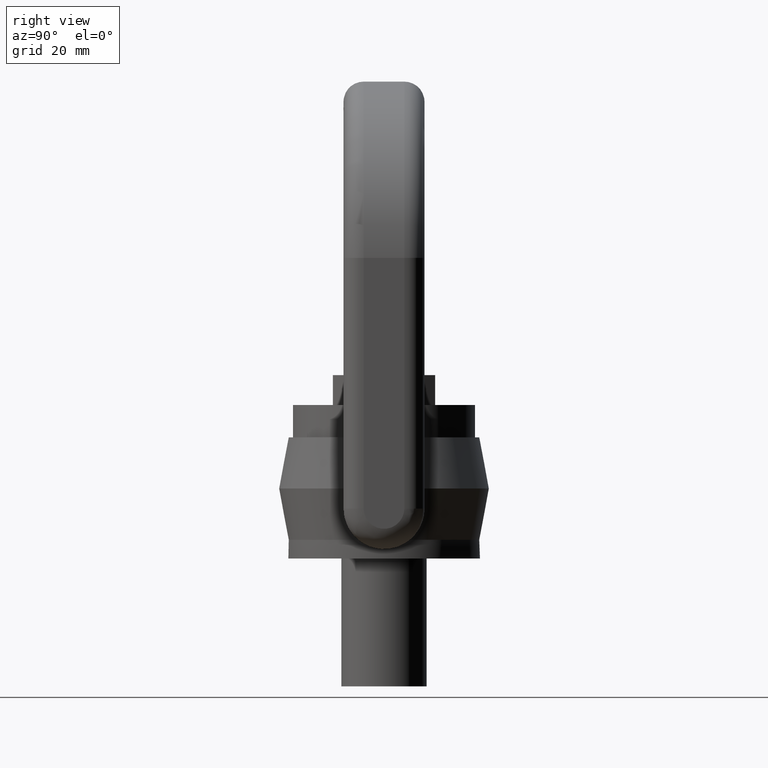
[diagram: clean part render]
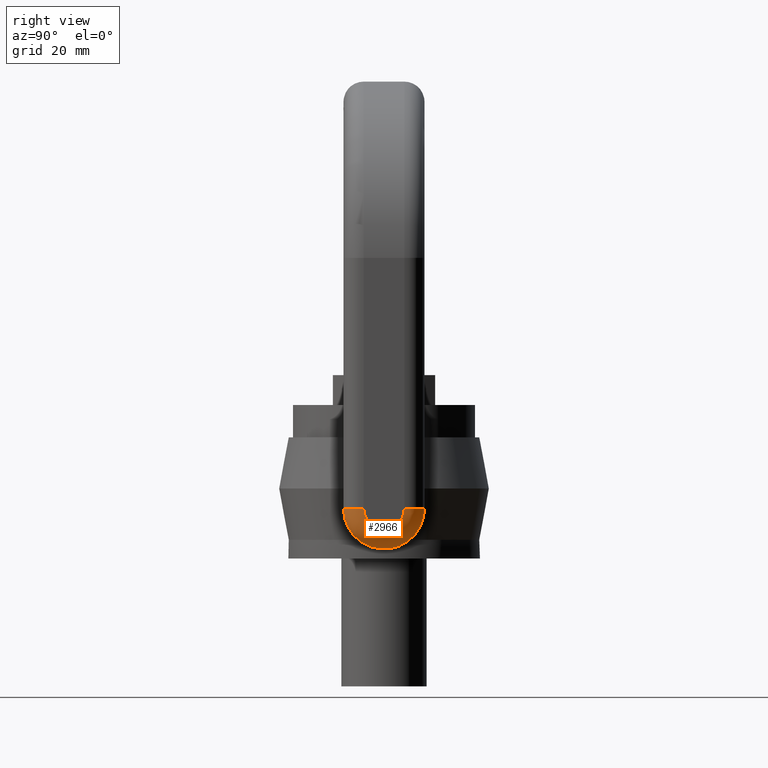
[diagram: same view with one face highlighted and labeled with its STEP entity id]
A machine part, right view. The second image highlights one B-rep face of the part: STEP entity #2966.
In plain terms, the highlighted face is a freeform B-spline surface patch.
Its self-contained STEP definition (entity closure, byte-faithful):
#214=(
BOUNDED_SURFACE()
B_SPLINE_SURFACE(3,3,((#9465,#9466,#9467,#9468),(#9469,#9470,#9471,#9472),
(#9473,#9474,#9475,#9476),(#9477,#9478,#9479,#9480)),.UNSPECIFIED.,.F.,
 .F.,.F.)
B_SPLINE_SURFACE_WITH_KNOTS((4,4),(4,4),(0.,1.),(0.,1.),.UNSPECIFIED.)
GEOMETRIC_REPRESENTATION_ITEM()
RATIONAL_B_SPLINE_SURFACE(((1.,0.333333333333333,0.333333333333333,1.),
(0.804737854124364,0.268245951374788,0.268245951374788,0.804737854124364),
(0.804737854124364,0.268245951374788,0.268245951374788,0.804737854124364),
(1.,0.333333333333333,0.333333333333333,1.)))
REPRESENTATION_ITEM('')
SURFACE()
);
#2612=FACE_OUTER_BOUND('',#3326,.T.);
#2966=ADVANCED_FACE('',(#2612),#214,.T.);
#3326=EDGE_LOOP('',(#4491,#4492,#4493,#4494));
#4491=ORIENTED_EDGE('',*,*,#5531,.T.);
#4492=ORIENTED_EDGE('',*,*,#4990,.F.);
#4493=ORIENTED_EDGE('',*,*,#5532,.T.);
#4494=ORIENTED_EDGE('',*,*,#5088,.F.);
#4576=VERTEX_POINT('',#6696);
#4578=VERTEX_POINT('',#6709);
#4672=VERTEX_POINT('',#7078);
#4673=VERTEX_POINT('',#7079);
#4990=EDGE_CURVE('',#4578,#4576,#5553,.T.);
#5088=EDGE_CURVE('',#4672,#4673,#5565,.T.);
#5531=EDGE_CURVE('',#4672,#4576,#5587,.T.);
#5532=EDGE_CURVE('',#4578,#4673,#5588,.T.);
#5553=CIRCLE('',#5633,9.49999999999997);
#5565=CIRCLE('',#5654,4.74999999999997);
#5587=CIRCLE('',#5786,4.75);
#5588=CIRCLE('',#5788,4.75);
#5633=AXIS2_PLACEMENT_3D('',#6710,#5910,#5911);
#5654=AXIS2_PLACEMENT_3D('',#7077,#5999,#6000);
#5786=AXIS2_PLACEMENT_3D('',#9461,#6550,#6551);
#5788=AXIS2_PLACEMENT_3D('',#9463,#6554,#6555);
#5910=DIRECTION('',(-1.,0.,-4.06377388222971E-16));
#5911=DIRECTION('',(-7.30409884621816E-16,0.,1.));
#5999=DIRECTION('',(1.,0.,4.06377388222971E-16));
#6000=DIRECTION('',(0.,0.,1.));
#6550=DIRECTION('',(3.65204942310907E-16,0.,-1.));
#6551=DIRECTION('',(-0.999999999999999,0.,-3.65204942310907E-16));
#6554=DIRECTION('',(3.65204942310907E-16,-1.0669971991065E-30,-1.));
#6555=DIRECTION('',(-0.999999999999999,0.,-3.65204942310907E-16));
#6696=CARTESIAN_POINT('',(36.75,-9.5,11.7));
#6709=CARTESIAN_POINT('',(36.75,9.49999999999991,11.7));
#6710=CARTESIAN_POINT('',(36.75,-4.29413980200031E-14,11.7));
#7077=CARTESIAN_POINT('',(41.5,-4.29413980200031E-14,11.7));
#7078=CARTESIAN_POINT('',(41.5,-4.75,11.7));
#7079=CARTESIAN_POINT('',(41.5,4.74999999999993,11.7));
#9461=CARTESIAN_POINT('',(36.75,-4.75,11.7));
#9463=CARTESIAN_POINT('',(36.75,4.74999999999991,11.7));
#9465=CARTESIAN_POINT('',(36.75,9.49999999999993,11.7));
#9466=CARTESIAN_POINT('',(36.75,9.49999999999993,-7.29999999999999));
#9467=CARTESIAN_POINT('',(36.75,-9.50000000000001,-7.29999999999998));
#9468=CARTESIAN_POINT('',(36.75,-9.50000000000001,11.7));
#9469=CARTESIAN_POINT('',(39.5324855787278,9.49999999999993,11.7));
#9470=CARTESIAN_POINT('',(39.5324855787278,9.49999999999993,-7.29999999999999));
#9471=CARTESIAN_POINT('',(39.5324855787278,-9.50000000000001,-7.29999999999999));
#9472=CARTESIAN_POINT('',(39.5324855787278,-9.50000000000002,11.7));
#9473=CARTESIAN_POINT('',(41.5,7.53248557872772,11.7));
#9474=CARTESIAN_POINT('',(41.5,7.53248557872773,-3.36497115745557));
#9475=CARTESIAN_POINT('',(41.5,-7.5324855787278,-3.36497115745557));
#9476=CARTESIAN_POINT('',(41.5,-7.53248557872781,11.7));
#9477=CARTESIAN_POINT('',(41.5,4.74999999999991,11.7));
#9478=CARTESIAN_POINT('',(41.5,4.74999999999991,2.20000000000005));
#9479=CARTESIAN_POINT('',(41.5,-4.74999999999999,2.20000000000005));
#9480=CARTESIAN_POINT('',(41.5,-4.75,11.7));